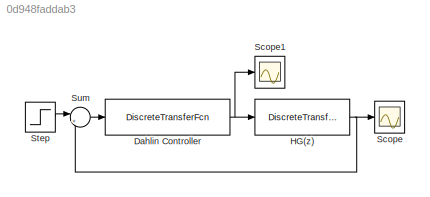
MODEL slx_0d948faddab3
KIND model
CONFIG AbsTol = auto
CONFIG EnableMultiTasking = off
CONFIG FixedStep = 1
CONFIG MaxStep = auto
CONFIG MinStep = auto
CONFIG RelTol = 1e-3
CONFIG SampleTimeConstraint = Unconstrained
CONFIG SolverName = FixedStepAuto
CONFIG StartTime = 0.0
CONFIG StopTime = 70.0
BLOCK [DiscreteTransferFcn] Dahlin Controller
  Denominator = [0.095 -0.905*0.095 -0.095^2]
  InputPortMap = u0
  Numerator = [0.095 -0.905*0.095 0]
BLOCK [DiscreteTransferFcn] HG(z)
  Denominator = [1 -0.905 0]
  InputPortMap = u0
  Numerator = [0 0 0.095]
BLOCK [Scope] Scope
  Floating = off
  NumInputPorts = 1
  ScopeSpecificationString = Simulink.scopes.TimeScopeBlockCfg('CurrentConfiguration', extmgr.ConfigurationSet(extmgr.Configuration('Core','General UI',true,'FigureColor',[1 1 1]),extmgr.Configuration('Core','Source UI',true),extmgr.Configuration('Sources','WiredSimulink',true),extmgr.Configuration('Visuals','Time Domain',true,'SerializedDisplays',{struct('MinYLimReal','-0.12486','MaxYLimReal','1.12373','YLabelReal','y(m)','M...<+2373ch>
BLOCK [Scope] Scope1
  Floating = off
  NumInputPorts = 1
  ScopeSpecificationString = Simulink.scopes.TimeScopeBlockCfg('CurrentConfiguration', extmgr.ConfigurationSet(extmgr.Configuration('Core','General UI',true,'FigureColor',[1 1 1]),extmgr.Configuration('Core','Source UI',true),extmgr.Configuration('Sources','WiredSimulink',true,'DataLoggingVariableName','ScopeData1'),extmgr.Configuration('Visuals','Time Domain',true,'SerializedDisplays',{struct('MinYLimReal','0.999999999999998...<+2520ch>
BLOCK [Step] Step
  Before = 1
BLOCK [Sum] Sum
  Inputs = |+-
NET Dahlin Controller:1 -> HG(z):1, Scope1:1
NET HG(z):1 -> Scope:1, Sum:2
LINE Step:1 -> Sum:1
LINE Sum:1 -> Dahlin Controller:1
note: NET lines group one-source signal fan-out (src -> all destinations, sorted); 1:1 wires keep LINE
